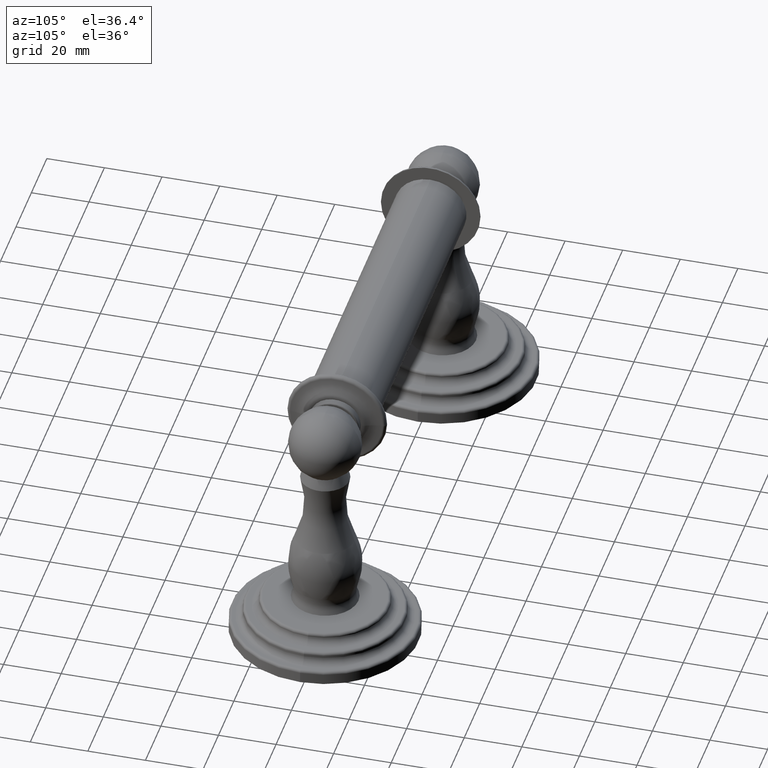
[diagram: clean part render]
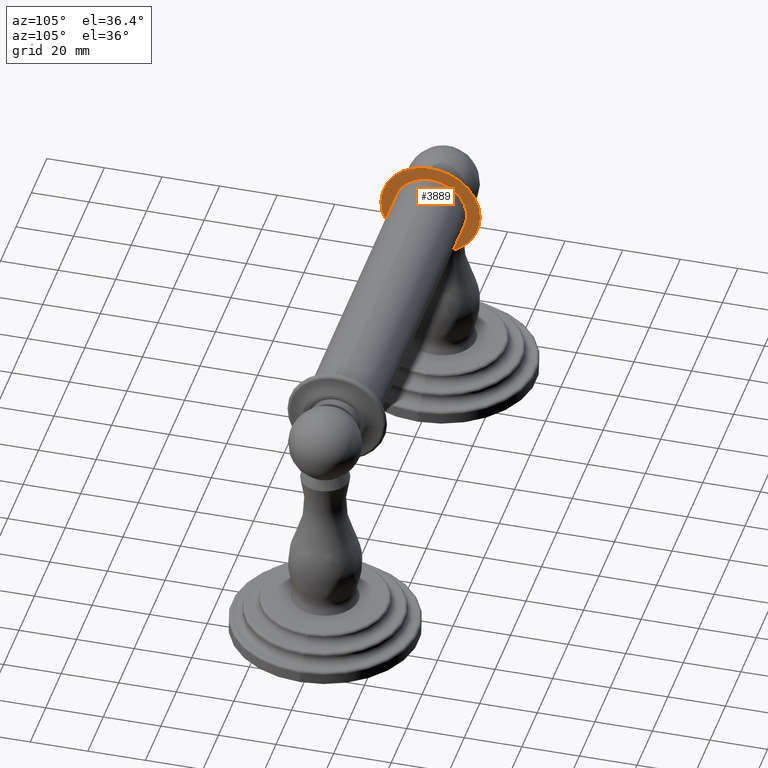
[diagram: same view with one face highlighted and labeled with its STEP entity id]
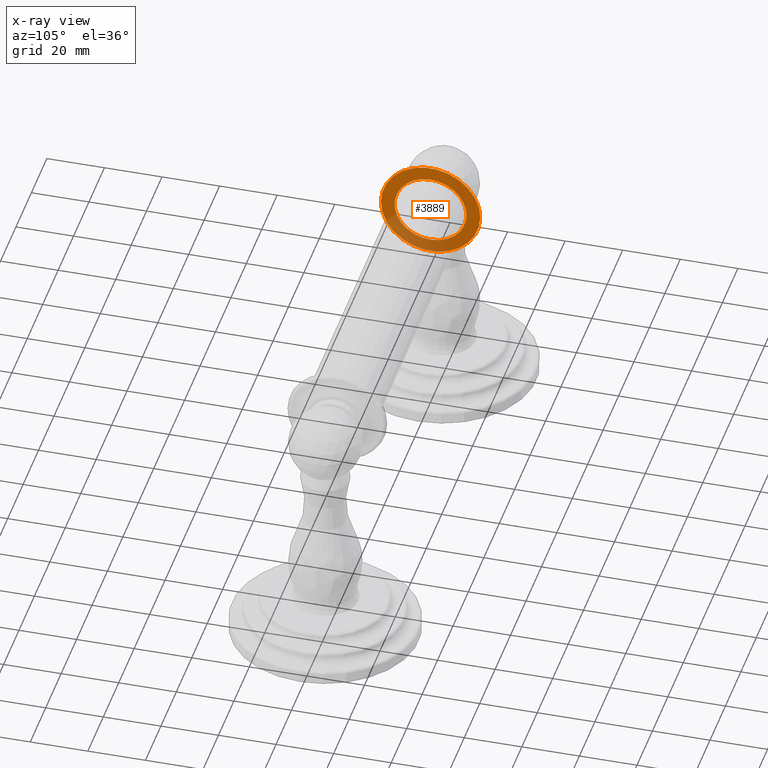
[diagram: x-ray of the same camera — body ghosted, the highlighted face saturated]
A machine part, auxiliary view. The second image highlights one B-rep face of the part: STEP entity #3889.
The next image is the same camera in x-ray: the body ghosted, the highlighted face saturated — about 27% of this face is hidden behind the body in this view.
In plain terms, the highlighted planar face has unit normal (1, 0, 0).
Its self-contained STEP definition (entity closure, byte-faithful):
#2974=CARTESIAN_POINT('',(-2.375E0,0.E0,3.012E0));
#2975=DIRECTION('',(1.E0,0.E0,0.E0));
#2976=DIRECTION('',(0.E0,-9.999999999982E-1,-1.899770247841E-6));
#2977=AXIS2_PLACEMENT_3D('',#2974,#2975,#2976);
#2996=CARTESIAN_POINT('',(-2.375E0,0.E0,3.012E0));
#2997=DIRECTION('',(-1.E0,0.E0,0.E0));
#2998=DIRECTION('',(0.E0,-9.999999999982E-1,-1.899770247841E-6));
#2999=AXIS2_PLACEMENT_3D('',#2996,#2997,#2998);
#3004=CARTESIAN_POINT('',(-2.375E0,0.E0,3.012E0));
#3005=DIRECTION('',(1.E0,0.E0,0.E0));
#3006=DIRECTION('',(0.E0,0.E0,-1.E0));
#3007=AXIS2_PLACEMENT_3D('',#3004,#3005,#3006);
#3027=CARTESIAN_POINT('',(-2.375E0,0.E0,3.012E0));
#3028=DIRECTION('',(1.E0,0.E0,0.E0));
#3029=DIRECTION('',(0.E0,0.E0,1.E0));
#3030=AXIS2_PLACEMENT_3D('',#3027,#3028,#3029);
#3648=CARTESIAN_POINT('',(-2.375E0,-6.789999999988E-1,3.011998710056E0));
#3650=VERTEX_POINT('',#3648);
#3658=CARTESIAN_POINT('',(-2.375E0,6.789999999988E-1,3.012001289944E0));
#3660=VERTEX_POINT('',#3658);
#3672=CARTESIAN_POINT('',(-2.375E0,0.E0,2.52E0));
#3673=CARTESIAN_POINT('',(-2.375E0,0.E0,3.504E0));
#3674=VERTEX_POINT('',#3672);
#3675=VERTEX_POINT('',#3673);
#3874=CARTESIAN_POINT('',(-2.375E0,0.E0,3.012E0));
#3875=DIRECTION('',(1.E0,0.E0,0.E0));
#3876=DIRECTION('',(0.E0,9.999999999982E-1,1.899770247714E-6));
#3877=AXIS2_PLACEMENT_3D('',#3874,#3875,#3876);
#3878=PLANE('',#3877);
#3879=ORIENTED_EDGE('',*,*,#3839,.F.);
#3880=ORIENTED_EDGE('',*,*,#3862,.T.);
#3881=EDGE_LOOP('',(#3879,#3880));
#3882=FACE_OUTER_BOUND('',#3881,.F.);
#3884=ORIENTED_EDGE('',*,*,#3883,.T.);
#3886=ORIENTED_EDGE('',*,*,#3885,.T.);
#3887=EDGE_LOOP('',(#3884,#3886));
#3888=FACE_BOUND('',#3887,.F.);
#2978=CIRCLE('',#2977,6.79E-1);
#3000=CIRCLE('',#2999,6.79E-1);
#3008=CIRCLE('',#3007,4.92E-1);
#3031=CIRCLE('',#3030,4.92E-1);
#3839=EDGE_CURVE('',#3650,#3660,#2978,.T.);
#3862=EDGE_CURVE('',#3650,#3660,#3000,.T.);
#3883=EDGE_CURVE('',#3674,#3675,#3008,.T.);
#3885=EDGE_CURVE('',#3675,#3674,#3031,.T.);
#3889=ADVANCED_FACE('',(#3882,#3888),#3878,.T.);